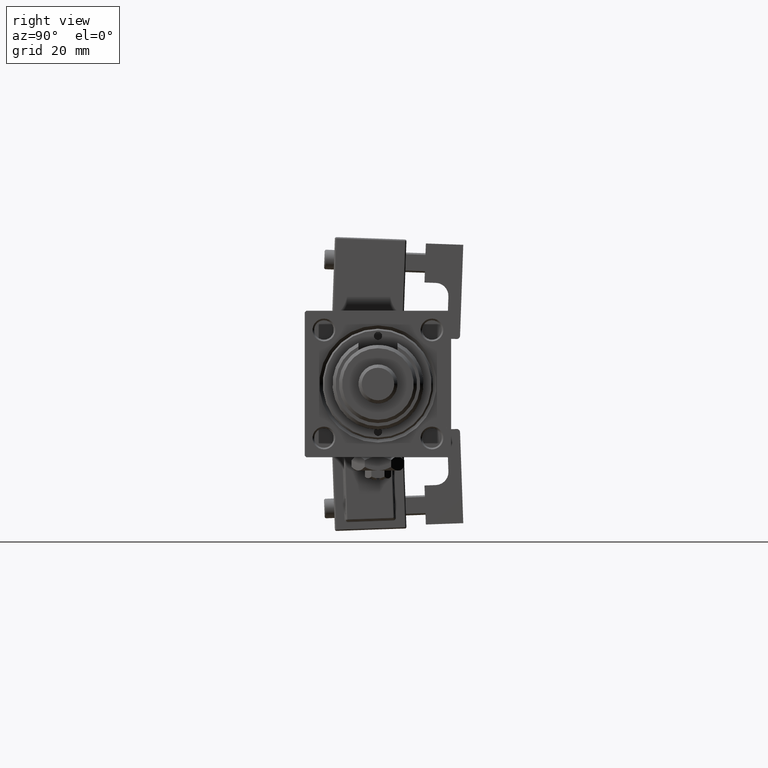
[diagram: clean part render]
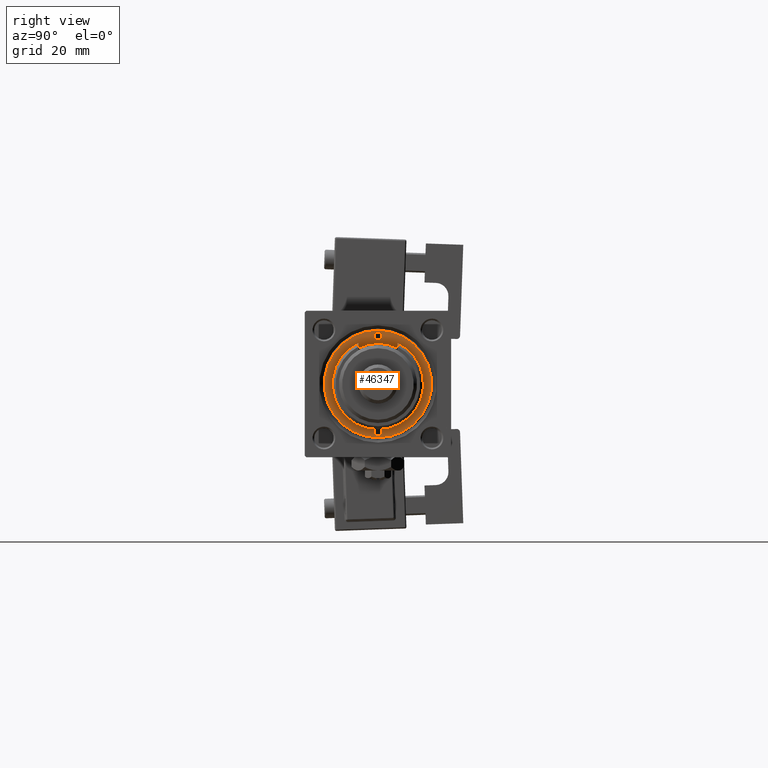
[diagram: same view with one face highlighted and labeled with its STEP entity id]
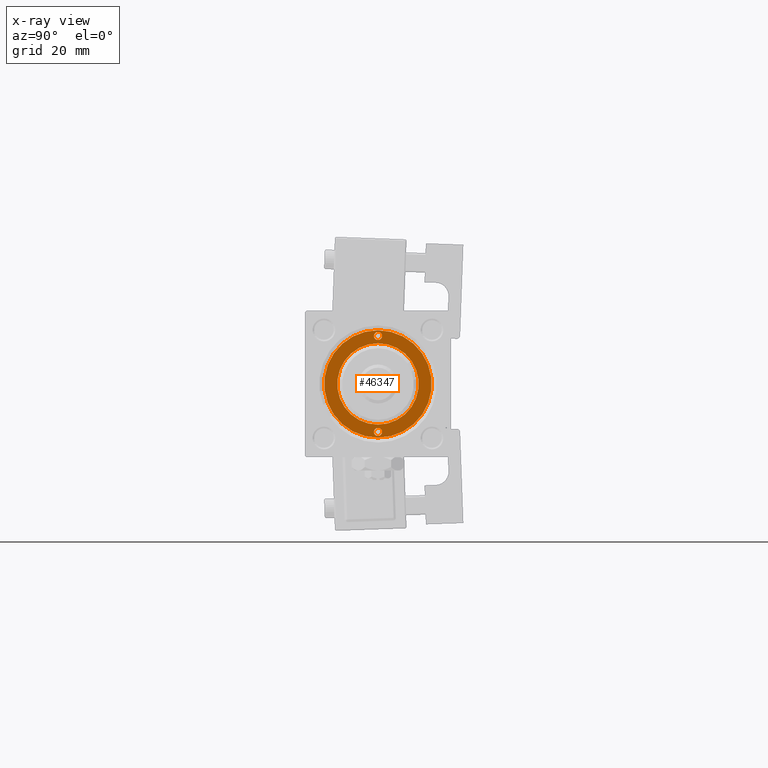
[diagram: x-ray of the same camera — body ghosted, the highlighted face saturated]
A machine part, right view. The second image highlights one B-rep face of the part: STEP entity #46347.
The next image is the same camera in x-ray: the body ghosted, the highlighted face saturated — about 0% of this face is hidden behind the body in this view.
In plain terms, the highlighted planar face has unit normal (1, 0, 0).
Its self-contained STEP definition (entity closure, byte-faithful):
#492 = CIRCLE ( 'NONE', #48224, 1.250000000000001110 ) ;
#3278 = CIRCLE ( 'NONE', #38394, 16.49999999999999289 ) ;
#3929 = CARTESIAN_POINT ( 'NONE',  ( 16.00000000000000000, 0.000000000000000000, 40.70000000000000284 ) ) ;
#3972 = CARTESIAN_POINT ( 'NONE',  ( 0.000000000000000000, 0.000000000000000000, 40.70000000000000284 ) ) ;
#5264 = DIRECTION ( 'NONE',  ( 1.000000000000000000, 0.000000000000000000, 0.000000000000000000 ) ) ;
#5473 = EDGE_CURVE ( 'NONE', #5585, #37071, #11887, .T. ) ;
#5585 = VERTEX_POINT ( 'NONE', #13547 ) ;
#6059 = DIRECTION ( 'NONE',  ( 1.000000000000000000, 0.000000000000000000, 0.000000000000000000 ) ) ;
#8238 = CARTESIAN_POINT ( 'NONE',  ( -16.00000000000000000, 1.530808498934190585E-16, 40.70000000000000284 ) ) ;
#8918 = ORIENTED_EDGE ( 'NONE', *, *, #20414, .F. ) ;
#9188 = CARTESIAN_POINT ( 'NONE',  ( 0.000000000000000000, 0.000000000000000000, 40.70000000000000284 ) ) ;
#9464 = FACE_BOUND ( 'NONE', #42397, .T. ) ;
#10367 = EDGE_CURVE ( 'NONE', #37071, #5585, #52607, .T. ) ;
#11375 = AXIS2_PLACEMENT_3D ( 'NONE', #35171, #44723, #48390 ) ;
#11526 = EDGE_CURVE ( 'NONE', #12908, #48001, #3278, .T. ) ;
#11887 = CIRCLE ( 'NONE', #42526, 1.249999999999999334 ) ;
#12908 = VERTEX_POINT ( 'NONE', #51768 ) ;
#12984 = DIRECTION ( 'NONE',  ( 1.000000000000000000, 0.000000000000000000, 0.000000000000000000 ) ) ;
#13399 = CIRCLE ( 'NONE', #20622, 1.250000000000001110 ) ;
#13421 = FACE_OUTER_BOUND ( 'NONE', #27752, .T. ) ;
#13547 = CARTESIAN_POINT ( 'NONE',  ( -13.50000000000000000, 0.000000000000000000, 40.70000000000000284 ) ) ;
#14831 = EDGE_CURVE ( 'NONE', #47393, #37704, #34771, .T. ) ;
#15368 = DIRECTION ( 'NONE',  ( -0.000000000000000000, -0.000000000000000000, 1.000000000000000000 ) ) ;
#16212 = CIRCLE ( 'NONE', #47722, 12.50000000000000000 ) ;
#18815 = DIRECTION ( 'NONE',  ( -0.000000000000000000, -0.000000000000000000, 1.000000000000000000 ) ) ;
#20414 = EDGE_CURVE ( 'NONE', #49859, #54939, #13399, .T. ) ;
#20622 = AXIS2_PLACEMENT_3D ( 'NONE', #40274, #18815, #36057 ) ;
#21171 = DIRECTION ( 'NONE',  ( 0.000000000000000000, 0.000000000000000000, 1.000000000000000000 ) ) ;
#21570 = CARTESIAN_POINT ( 'NONE',  ( 16.49999999999999289, 2.051283388571816493E-15, 40.70000000000000284 ) ) ;
#22779 = EDGE_LOOP ( 'NONE', ( #32511, #8918 ) ) ;
#23377 = CARTESIAN_POINT ( 'NONE',  ( -12.50000000000000000, 1.530808498934191521E-15, 40.70000000000000284 ) ) ;
#24544 = DIRECTION ( 'NONE',  ( 0.000000000000000000, 0.000000000000000000, 1.000000000000000000 ) ) ;
#25365 = CARTESIAN_POINT ( 'NONE',  ( 0.000000000000000000, 0.000000000000000000, 40.70000000000000284 ) ) ;
#26385 = CARTESIAN_POINT ( 'NONE',  ( 13.49999999999999822, 1.530808498934192803E-16, 40.70000000000000284 ) ) ;
#26391 = DIRECTION ( 'NONE',  ( 0.000000000000000000, 0.000000000000000000, 1.000000000000000000 ) ) ;
#27752 = EDGE_LOOP ( 'NONE', ( #36792, #50120 ) ) ;
#30923 = DIRECTION ( 'NONE',  ( 1.000000000000000000, 0.000000000000000000, -0.000000000000000000 ) ) ;
#32511 = ORIENTED_EDGE ( 'NONE', *, *, #41564, .F. ) ;
#32840 = DIRECTION ( 'NONE',  ( 1.000000000000000000, 0.000000000000000000, 0.000000000000000000 ) ) ;
#33316 = DIRECTION ( 'NONE',  ( 1.000000000000000000, 0.000000000000000000, 0.000000000000000000 ) ) ;
#33354 = ORIENTED_EDGE ( 'NONE', *, *, #5473, .F. ) ;
#33401 = CARTESIAN_POINT ( 'NONE',  ( -14.75000000000000000, 0.000000000000000000, 40.70000000000000284 ) ) ;
#34248 = CIRCLE ( 'NONE', #48652, 16.49999999999999289 ) ;
#34771 = CIRCLE ( 'NONE', #11375, 12.50000000000000000 ) ;
#35171 = CARTESIAN_POINT ( 'NONE',  ( 0.000000000000000000, 0.000000000000000000, 40.70000000000000284 ) ) ;
#35629 = ORIENTED_EDGE ( 'NONE', *, *, #14831, .F. ) ;
#36057 = DIRECTION ( 'NONE',  ( 1.000000000000000000, 0.000000000000000000, 0.000000000000000000 ) ) ;
#36792 = ORIENTED_EDGE ( 'NONE', *, *, #11526, .T. ) ;
#37071 = VERTEX_POINT ( 'NONE', #8238 ) ;
#37704 = VERTEX_POINT ( 'NONE', #23377 ) ;
#38394 = AXIS2_PLACEMENT_3D ( 'NONE', #3972, #21171, #12984 ) ;
#40059 = DIRECTION ( 'NONE',  ( -0.000000000000000000, -0.000000000000000000, 1.000000000000000000 ) ) ;
#40236 = CARTESIAN_POINT ( 'NONE',  ( 0.000000000000000000, 0.000000000000000000, 40.70000000000000284 ) ) ;
#40274 = CARTESIAN_POINT ( 'NONE',  ( 14.75000000000000000, 0.000000000000000000, 40.70000000000000284 ) ) ;
#40604 = ORIENTED_EDGE ( 'NONE', *, *, #10367, .F. ) ;
#40763 = CARTESIAN_POINT ( 'NONE',  ( -14.75000000000000000, 0.000000000000000000, 40.70000000000000284 ) ) ;
#41564 = EDGE_CURVE ( 'NONE', #54939, #49859, #492, .T. ) ;
#41902 = CARTESIAN_POINT ( 'NONE',  ( 12.50000000000000000, 0.000000000000000000, 40.70000000000000284 ) ) ;
#42397 = EDGE_LOOP ( 'NONE', ( #35629, #51583 ) ) ;
#42526 = AXIS2_PLACEMENT_3D ( 'NONE', #40763, #15368, #6059 ) ;
#44282 = CARTESIAN_POINT ( 'NONE',  ( 14.75000000000000000, 0.000000000000000000, 40.70000000000000284 ) ) ;
#44554 = DIRECTION ( 'NONE',  ( 1.000000000000000000, 0.000000000000000000, 0.000000000000000000 ) ) ;
#44723 = DIRECTION ( 'NONE',  ( 0.000000000000000000, 0.000000000000000000, 1.000000000000000000 ) ) ;
#45497 = DIRECTION ( 'NONE',  ( -0.000000000000000000, -0.000000000000000000, 1.000000000000000000 ) ) ;
#46347 = ADVANCED_FACE ( 'NONE', ( #55723, #52045, #9464, #13421 ), #47829, .T. ) ;
#47393 = VERTEX_POINT ( 'NONE', #41902 ) ;
#47491 = EDGE_LOOP ( 'NONE', ( #33354, #40604 ) ) ;
#47722 = AXIS2_PLACEMENT_3D ( 'NONE', #25365, #24544, #33316 ) ;
#47829 = PLANE ( 'NONE',  #53836 ) ;
#48001 = VERTEX_POINT ( 'NONE', #21570 ) ;
#48224 = AXIS2_PLACEMENT_3D ( 'NONE', #44282, #40059, #44554 ) ;
#48390 = DIRECTION ( 'NONE',  ( 1.000000000000000000, 0.000000000000000000, 0.000000000000000000 ) ) ;
#48652 = AXIS2_PLACEMENT_3D ( 'NONE', #40236, #49236, #5264 ) ;
#49236 = DIRECTION ( 'NONE',  ( 0.000000000000000000, 0.000000000000000000, 1.000000000000000000 ) ) ;
#49859 = VERTEX_POINT ( 'NONE', #26385 ) ;
#49925 = AXIS2_PLACEMENT_3D ( 'NONE', #33401, #45497, #32840 ) ;
#50120 = ORIENTED_EDGE ( 'NONE', *, *, #55343, .T. ) ;
#51583 = ORIENTED_EDGE ( 'NONE', *, *, #54876, .F. ) ;
#51768 = CARTESIAN_POINT ( 'NONE',  ( -16.49999999999999289, 0.000000000000000000, 40.70000000000000284 ) ) ;
#52045 = FACE_BOUND ( 'NONE', #22779, .T. ) ;
#52607 = CIRCLE ( 'NONE', #49925, 1.249999999999999334 ) ;
#53836 = AXIS2_PLACEMENT_3D ( 'NONE', #9188, #26391, #30923 ) ;
#54876 = EDGE_CURVE ( 'NONE', #37704, #47393, #16212, .T. ) ;
#54939 = VERTEX_POINT ( 'NONE', #3929 ) ;
#55343 = EDGE_CURVE ( 'NONE', #48001, #12908, #34248, .T. ) ;
#55723 = FACE_BOUND ( 'NONE', #47491, .T. ) ;